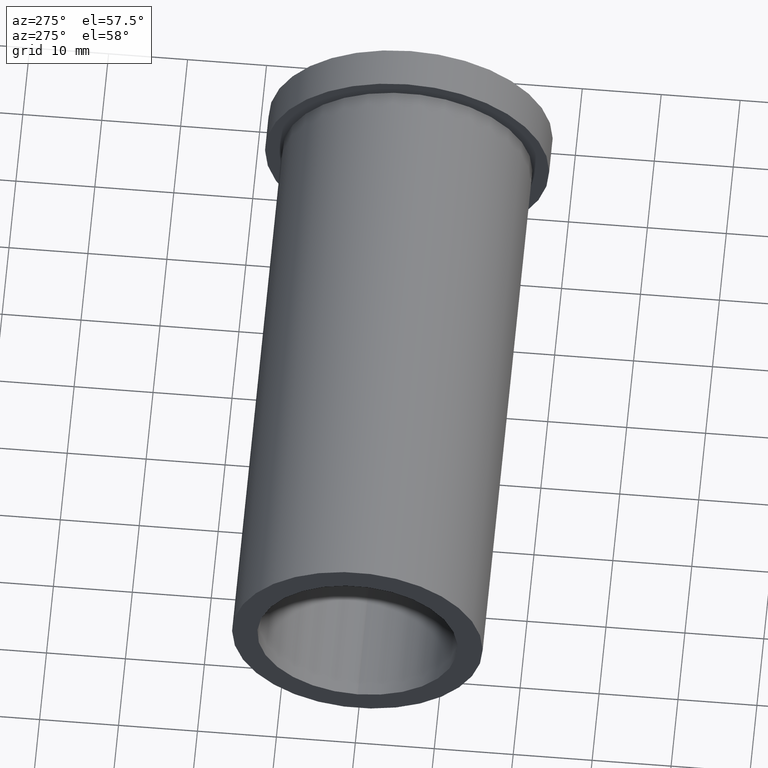
[diagram: clean part render]
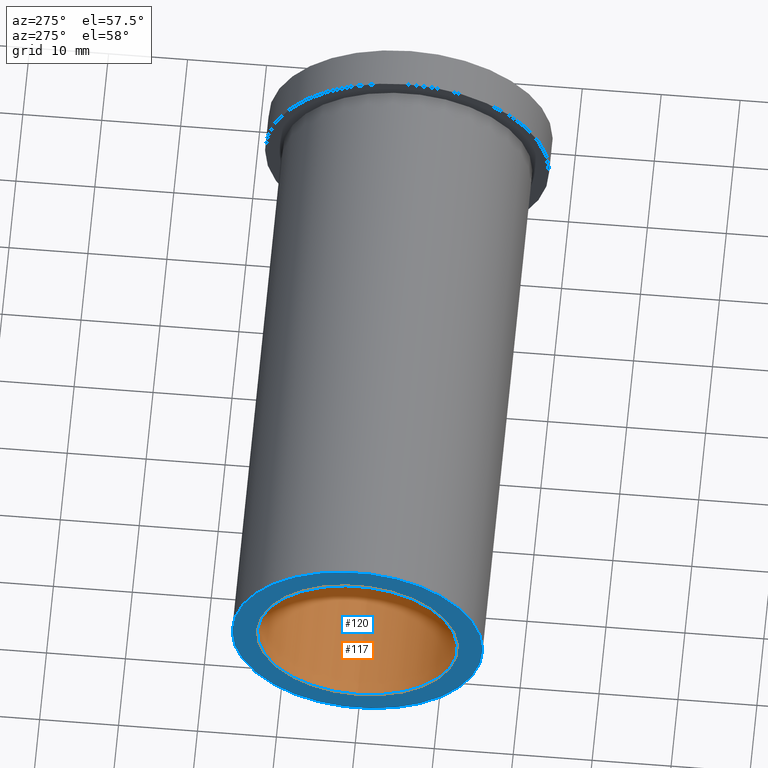
[diagram: same view with the hole feature highlighted: cylindrical wall and planar end face, labeled with their STEP entity ids]
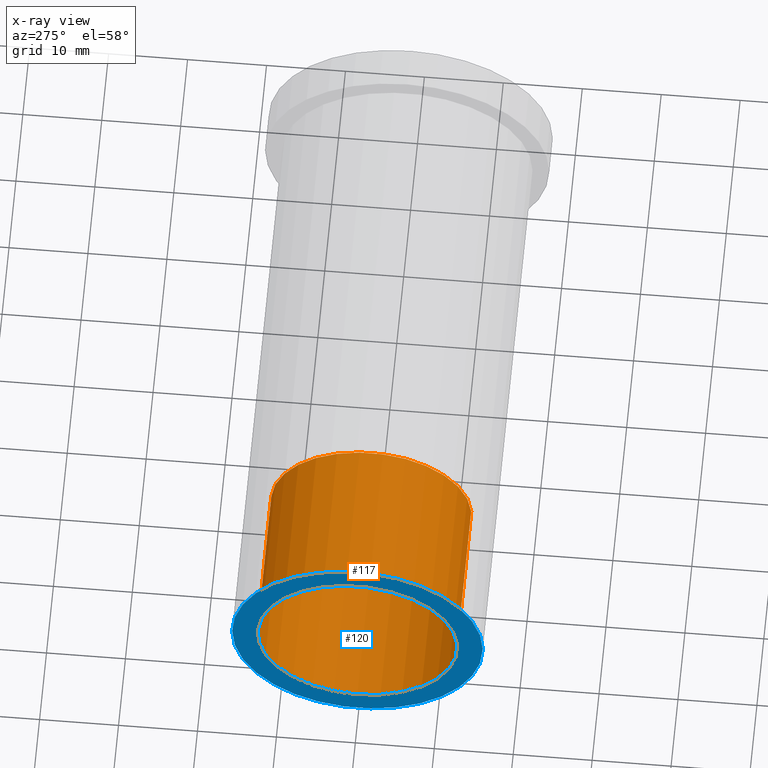
[diagram: x-ray of the same camera — body ghosted, the hole faces saturated]
A machine part, auxiliary view. The highlighted faces form one hole feature of diameter 25.3762 mm: the cylindrical wall (entity #117, orange) and its adjacent planar end face (entity #120, blue) — they share a circular edge in the B-rep.
The next image is the same camera in x-ray (body ghosted, the hole faces saturated) — the bore reads through the body.
Wall:
#24=FACE_OUTER_BOUND('',#32,.T.);
#32=EDGE_LOOP('',(#93,#94,#95,#96));
#43=LINE('',#220,#48);
#48=VECTOR('',#183,12.688101);
#54=CIRCLE('',#151,12.688101);
#55=CIRCLE('',#153,12.688101);
#63=VERTEX_POINT('',#214);
#64=VERTEX_POINT('',#218);
#73=EDGE_CURVE('',#63,#63,#54,.T.);
#75=EDGE_CURVE('',#64,#64,#55,.T.);
#76=EDGE_CURVE('',#64,#63,#43,.T.);
#93=ORIENTED_EDGE('',*,*,#75,.F.);
#94=ORIENTED_EDGE('',*,*,#76,.T.);
#95=ORIENTED_EDGE('',*,*,#73,.F.);
#96=ORIENTED_EDGE('',*,*,#76,.F.);
#112=CYLINDRICAL_SURFACE('',#152,12.688101);
#117=ADVANCED_FACE('',(#24),#112,.F.);
#151=AXIS2_PLACEMENT_3D('',#215,#176,#177);
#152=AXIS2_PLACEMENT_3D('',#217,#179,#180);
#153=AXIS2_PLACEMENT_3D('',#219,#181,#182);
#176=DIRECTION('center_axis',(-1.,0.,0.));
#177=DIRECTION('ref_axis',(0.,0.,1.));
#179=DIRECTION('center_axis',(-1.,0.,0.));
#180=DIRECTION('ref_axis',(0.,0.,1.));
#181=DIRECTION('center_axis',(1.,0.,0.));
#182=DIRECTION('ref_axis',(0.,0.,1.));
#183=DIRECTION('',(1.,0.,0.));
#214=CARTESIAN_POINT('',(-57.,-1.55384422769083E-15,-12.688101));
#215=CARTESIAN_POINT('Origin',(-57.,0.,0.));
#217=CARTESIAN_POINT('Origin',(-67.,0.,0.));
#218=CARTESIAN_POINT('',(-77.,-1.55384422769083E-15,-12.688101));
#219=CARTESIAN_POINT('Origin',(-77.,0.,0.));
#220=CARTESIAN_POINT('',(-67.,-1.55384422769083E-15,-12.688101));
End face:
#16=FACE_BOUND('',#37,.T.);
#19=PLANE('',#158);
#27=FACE_OUTER_BOUND('',#36,.T.);
#36=EDGE_LOOP('',(#103));
#37=EDGE_LOOP('',(#104));
#55=CIRCLE('',#153,12.688101);
#58=CIRCLE('',#159,15.875);
#64=VERTEX_POINT('',#218);
#67=VERTEX_POINT('',#229);
#75=EDGE_CURVE('',#64,#64,#55,.T.);
#80=EDGE_CURVE('',#67,#67,#58,.T.);
#103=ORIENTED_EDGE('',*,*,#80,.F.);
#104=ORIENTED_EDGE('',*,*,#75,.T.);
#120=ADVANCED_FACE('',(#27,#16),#19,.T.);
#153=AXIS2_PLACEMENT_3D('',#219,#181,#182);
#158=AXIS2_PLACEMENT_3D('',#228,#193,#194);
#159=AXIS2_PLACEMENT_3D('',#230,#195,#196);
#181=DIRECTION('center_axis',(1.,0.,0.));
#182=DIRECTION('ref_axis',(0.,0.,1.));
#193=DIRECTION('center_axis',(-1.,0.,0.));
#194=DIRECTION('ref_axis',(0.,0.,1.));
#195=DIRECTION('center_axis',(1.,0.,0.));
#196=DIRECTION('ref_axis',(0.,0.,-1.));
#218=CARTESIAN_POINT('',(-77.,-1.55384422769083E-15,-12.688101));
#219=CARTESIAN_POINT('Origin',(-77.,0.,0.));
#228=CARTESIAN_POINT('Origin',(-77.,15.875,0.));
#229=CARTESIAN_POINT('',(-77.,-15.8750000000001,-1.94412679364643E-15));
#230=CARTESIAN_POINT('Origin',(-77.,0.,0.));